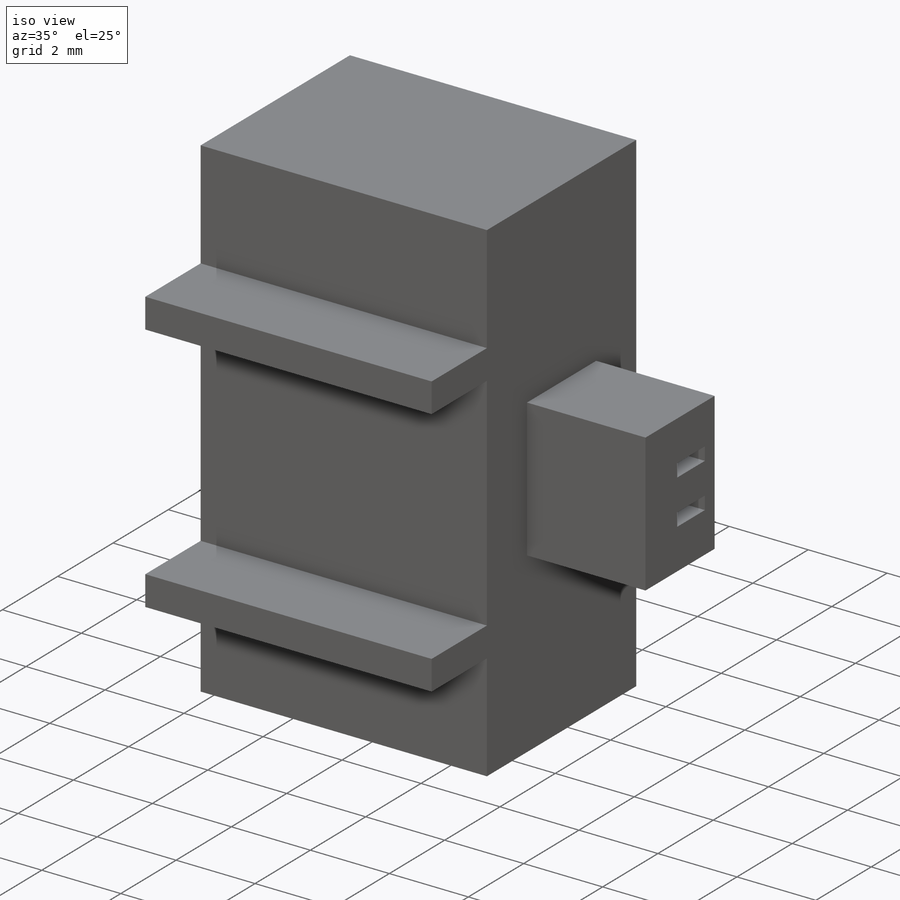
[diagram: iso view]
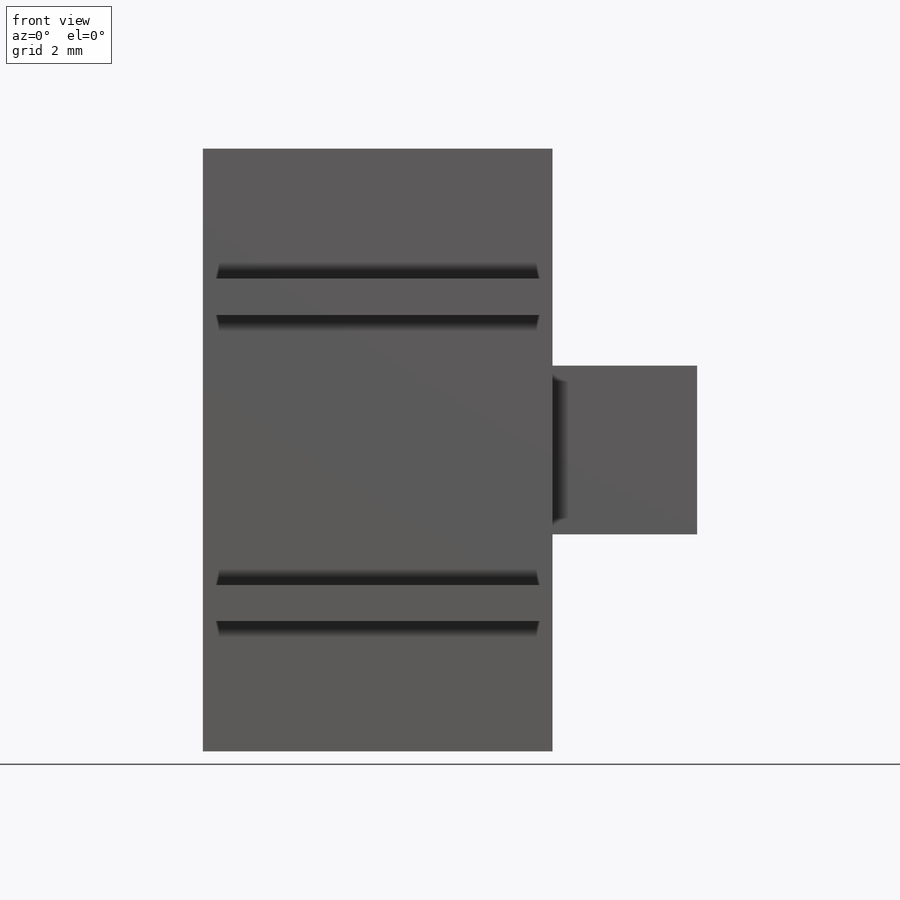
[diagram: front view]
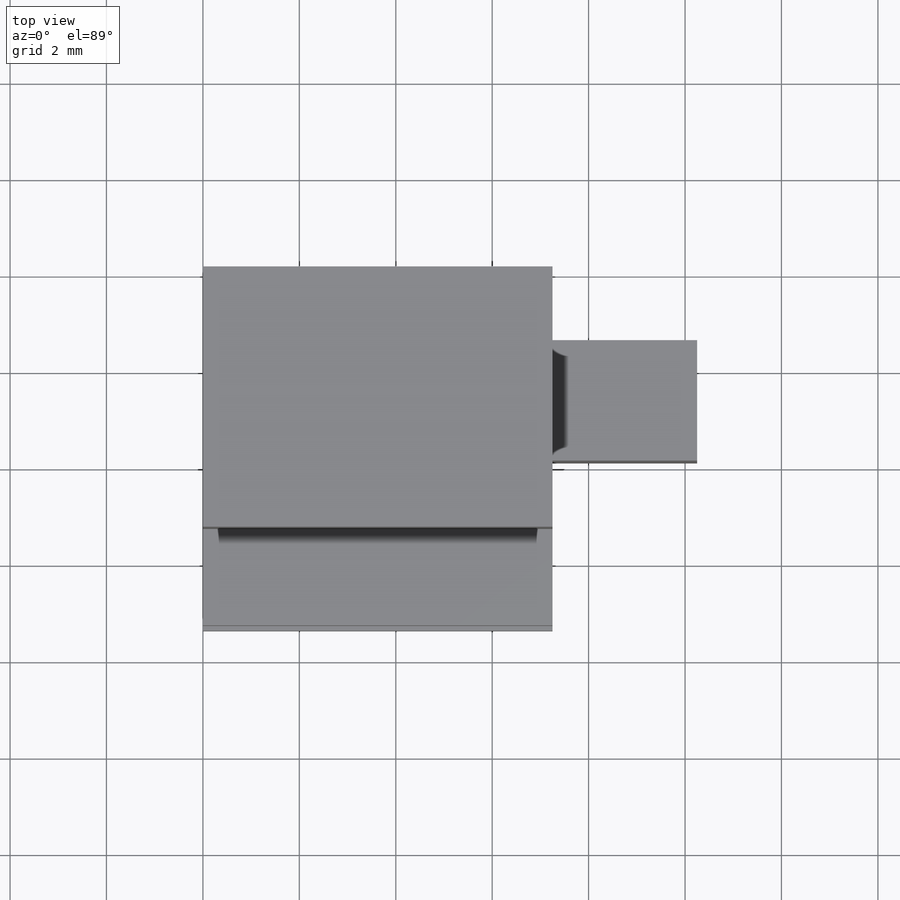
[diagram: top view]
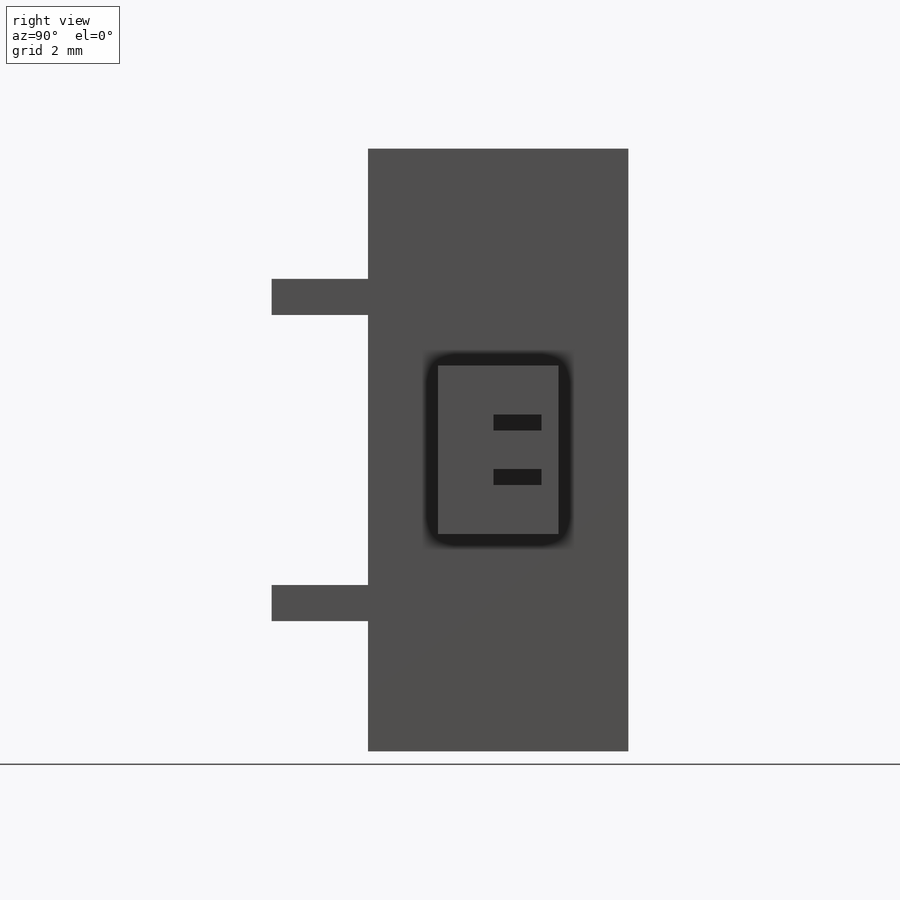
[diagram: right view]
SOLIDWORKS PART (.sldprt)
format: sldprt  version: not decoded by parser v0  size: 214,016 bytes
history: native  units: mm
features: sketch x4, extrude x4, material x1 (+13 scaffold rows collapsed)
feature tree (22):
  scaffold x13  (default folders/planes/origin — collapsed)
  material  "Material <not specified>"
  sketch  "Sketch1"  dims[D1=12.25mm D2=5.0mm]
  extrude  "Boss-Extrude1"  Depth=5.6mm
  sketch  "Sketch3"  dims[D1=3.5mm D2=2.5mm D3=1.0mm D4=0.5mm D5=0.4mm D6=1.0mm D7=1.6mm]
  extrude  "Boss-Extrude2"  Depth=3mm
  sketch  "Sketch4"  dims[D1=0.75mm]
  extrude  "Boss-Extrude3"  Depth=2.25mm
  sketch  "Sketch5"  dims[D1=0.75mm]
  extrude  "Boss-Extrude4"  [1 undecoded]
decode coverage: 7 of 8 modeling features carry decoded parameters
note: 1 parameter value undecoded
note: suppression state not decoded; provenance and decode notes live in map.json
